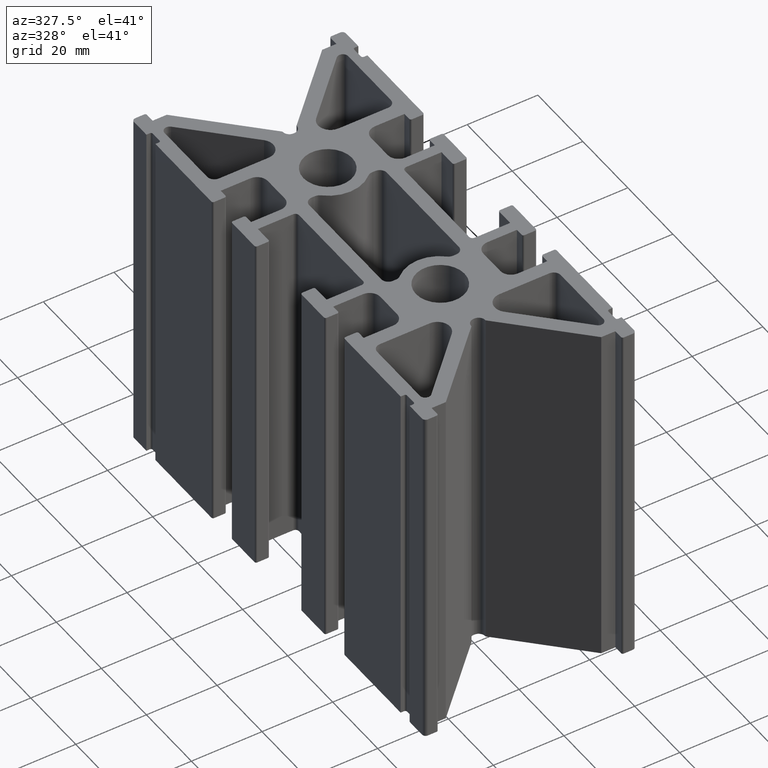
[diagram: clean part render]
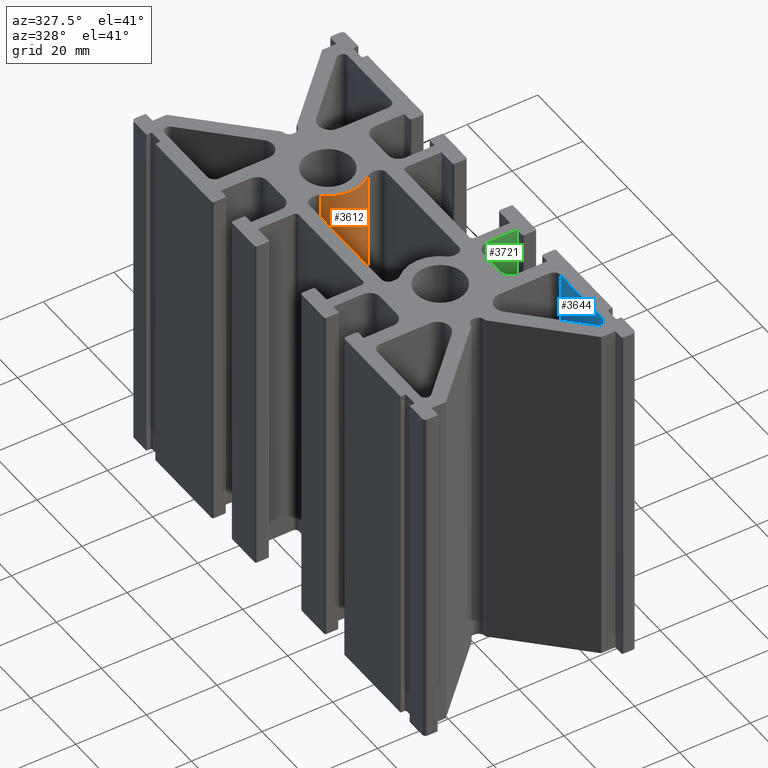
[diagram: same view with three faces highlighted in distinct colors, each labeled with its STEP entity id]
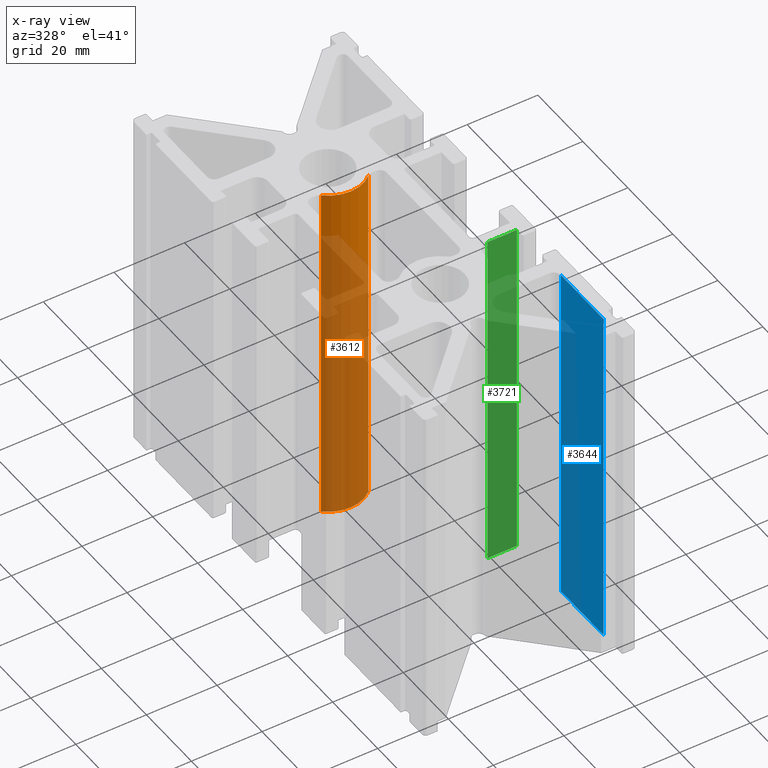
[diagram: x-ray of the same camera — body ghosted, the three highlighted faces saturated]
A machine part, auxiliary view with three faces highlighted in distinct colors.
The next image is the same camera in x-ray (body ghosted, the three faces saturated) — at least one of them is partly hidden behind the body in this view.
Their STEP definitions:

[orange] entity #3612 — the highlighted cylindrical surface (partial cylindrical patch) has radius 9.9 mm, axis along (0, 0, 1).
#140=FACE_OUTER_BOUND('',#328,.T.);
#328=EDGE_LOOP('',(#2425,#2426,#2427,#2428));
#531=CIRCLE('',#3828,9.90000000000002);
#532=CIRCLE('',#3829,9.90000000000002);
#692=LINE('',#5284,#1090);
#693=LINE('',#5290,#1091);
#1090=VECTOR('',#4187,10.);
#1091=VECTOR('',#4194,10.);
#1489=VERTEX_POINT('',#5281);
#1490=VERTEX_POINT('',#5283);
#1491=VERTEX_POINT('',#5287);
#1492=VERTEX_POINT('',#5289);
#1863=EDGE_CURVE('',#1489,#1490,#692,.T.);
#1865=EDGE_CURVE('',#1491,#1489,#531,.T.);
#1866=EDGE_CURVE('',#1491,#1492,#693,.T.);
#1867=EDGE_CURVE('',#1490,#1492,#532,.T.);
#2425=ORIENTED_EDGE('',*,*,#1863,.F.);
#2426=ORIENTED_EDGE('',*,*,#1865,.F.);
#2427=ORIENTED_EDGE('',*,*,#1866,.T.);
#2428=ORIENTED_EDGE('',*,*,#1867,.F.);
#3531=CYLINDRICAL_SURFACE('',#3827,9.90000000000002);
#3612=ADVANCED_FACE('',(#140),#3531,.T.);
#3827=AXIS2_PLACEMENT_3D('',#5286,#4190,#4191);
#3828=AXIS2_PLACEMENT_3D('',#5288,#4192,#4193);
#3829=AXIS2_PLACEMENT_3D('',#5291,#4195,#4196);
#4187=DIRECTION('',(0.,0.,1.));
#4190=DIRECTION('center_axis',(0.,0.,1.));
#4191=DIRECTION('ref_axis',(0.677748154223672,0.735294117647085,0.));
#4192=DIRECTION('center_axis',(0.,0.,-1.));
#4193=DIRECTION('ref_axis',(0.677748154223672,0.735294117647085,0.));
#4194=DIRECTION('',(0.,0.,1.));
#4195=DIRECTION('center_axis',(0.,0.,1.));
#4196=DIRECTION('ref_axis',(0.677748154223672,0.735294117647085,0.));
#5281=CARTESIAN_POINT('',(-6.70970672681435,17.4705882352937,-50.));
#5283=CARTESIAN_POINT('',(-6.70970672681435,17.4705882352937,50.));
#5284=CARTESIAN_POINT('',(-6.70970672681435,17.4705882352937,0.));
#5286=CARTESIAN_POINT('Origin',(0.,24.7499999999999,0.));
#5287=CARTESIAN_POINT('',(6.70970672681449,17.4705882352937,-50.));
#5288=CARTESIAN_POINT('Origin',(0.,24.7499999999999,-50.));
#5289=CARTESIAN_POINT('',(6.70970672681449,17.4705882352937,50.));
#5290=CARTESIAN_POINT('',(6.70970672681449,17.4705882352937,0.));
#5291=CARTESIAN_POINT('Origin',(0.,24.7499999999999,50.));

[blue] entity #3644 — the highlighted planar face has unit normal (1, 0, 0).
#44=PLANE('',#3895);
#172=FACE_OUTER_BOUND('',#360,.T.);
#360=EDGE_LOOP('',(#2553,#2554,#2555,#2556));
#752=LINE('',#5476,#1150);
#753=LINE('',#5480,#1151);
#754=LINE('',#5482,#1152);
#755=LINE('',#5483,#1153);
#1150=VECTOR('',#4383,10.);
#1151=VECTOR('',#4388,10.);
#1152=VECTOR('',#4389,10.);
#1153=VECTOR('',#4390,10.);
#1553=VERTEX_POINT('',#5473);
#1554=VERTEX_POINT('',#5475);
#1555=VERTEX_POINT('',#5479);
#1556=VERTEX_POINT('',#5481);
#1959=EDGE_CURVE('',#1554,#1553,#752,.T.);
#1961=EDGE_CURVE('',#1555,#1553,#753,.T.);
#1962=EDGE_CURVE('',#1556,#1555,#754,.T.);
#1963=EDGE_CURVE('',#1554,#1556,#755,.T.);
#2553=ORIENTED_EDGE('',*,*,#1959,.T.);
#2554=ORIENTED_EDGE('',*,*,#1961,.F.);
#2555=ORIENTED_EDGE('',*,*,#1962,.F.);
#2556=ORIENTED_EDGE('',*,*,#1963,.F.);
#3644=ADVANCED_FACE('',(#172),#44,.F.);
#3895=AXIS2_PLACEMENT_3D('',#5478,#4386,#4387);
#4383=DIRECTION('',(0.,0.,-1.));
#4386=DIRECTION('center_axis',(1.,0.,0.));
#4387=DIRECTION('ref_axis',(0.,1.,0.));
#4388=DIRECTION('',(0.,1.,0.));
#4389=DIRECTION('',(0.,0.,-1.));
#4390=DIRECTION('',(0.,-1.,0.));
#5473=CARTESIAN_POINT('',(25.999999999996,-37.7500000000026,-50.));
#5475=CARTESIAN_POINT('',(25.999999999996,-37.7500000000026,50.));
#5476=CARTESIAN_POINT('',(25.999999999996,-37.7500000000026,0.));
#5478=CARTESIAN_POINT('Origin',(25.999999999996,-56.7218254069529,0.));
#5479=CARTESIAN_POINT('',(25.999999999996,-56.7218254069529,-50.));
#5480=CARTESIAN_POINT('',(25.999999999996,-28.3609127034775,-50.));
#5481=CARTESIAN_POINT('',(25.999999999996,-56.7218254069529,50.));
#5482=CARTESIAN_POINT('',(25.999999999996,-56.7218254069529,0.));
#5483=CARTESIAN_POINT('',(25.999999999996,-28.3609127034775,50.));

[green] entity #3721 — the highlighted planar face has unit normal (0, -1, 0).
#90=PLANE('',#4063);
#249=FACE_OUTER_BOUND('',#444,.T.);
#444=EDGE_LOOP('',(#3043,#3044,#3045,#3046));
#808=LINE('',#5660,#1206);
#964=LINE('',#6083,#1362);
#965=LINE('',#6086,#1363);
#966=LINE('',#6087,#1364);
#1206=VECTOR('',#4527,10.);
#1362=VECTOR('',#4933,10.);
#1363=VECTOR('',#4936,10.);
#1364=VECTOR('',#4937,10.);
#1637=VERTEX_POINT('',#5657);
#1638=VERTEX_POINT('',#5659);
#1780=VERTEX_POINT('',#6081);
#1781=VERTEX_POINT('',#6085);
#2051=EDGE_CURVE('',#1637,#1638,#808,.T.);
#2263=EDGE_CURVE('',#1637,#1780,#964,.T.);
#2264=EDGE_CURVE('',#1781,#1780,#965,.T.);
#2265=EDGE_CURVE('',#1638,#1781,#966,.T.);
#3043=ORIENTED_EDGE('',*,*,#2263,.T.);
#3044=ORIENTED_EDGE('',*,*,#2264,.F.);
#3045=ORIENTED_EDGE('',*,*,#2265,.F.);
#3046=ORIENTED_EDGE('',*,*,#2051,.F.);
#3721=ADVANCED_FACE('',(#249),#90,.T.);
#4063=AXIS2_PLACEMENT_3D('',#6084,#4934,#4935);
#4527=DIRECTION('',(-1.,0.,0.));
#4933=DIRECTION('',(0.,0.,1.));
#4934=DIRECTION('center_axis',(0.,-1.,0.));
#4935=DIRECTION('ref_axis',(1.,0.,0.));
#4936=DIRECTION('',(1.,0.,0.));
#4937=DIRECTION('',(0.,0.,1.));
#5657=CARTESIAN_POINT('',(25.999999999996,-18.2499999999999,-50.));
#5659=CARTESIAN_POINT('',(17.5999999999981,-18.2499999999999,-50.));
#5660=CARTESIAN_POINT('',(17.5999999999981,-18.2499999999999,-50.));
#6081=CARTESIAN_POINT('',(25.999999999996,-18.2499999999999,50.));
#6083=CARTESIAN_POINT('',(25.999999999996,-18.2499999999999,0.));
#6084=CARTESIAN_POINT('Origin',(17.5999999999981,-18.2499999999999,0.));
#6085=CARTESIAN_POINT('',(17.5999999999981,-18.2499999999999,50.));
#6086=CARTESIAN_POINT('',(17.5999999999981,-18.2499999999999,50.));
#6087=CARTESIAN_POINT('',(17.5999999999981,-18.2499999999999,0.));